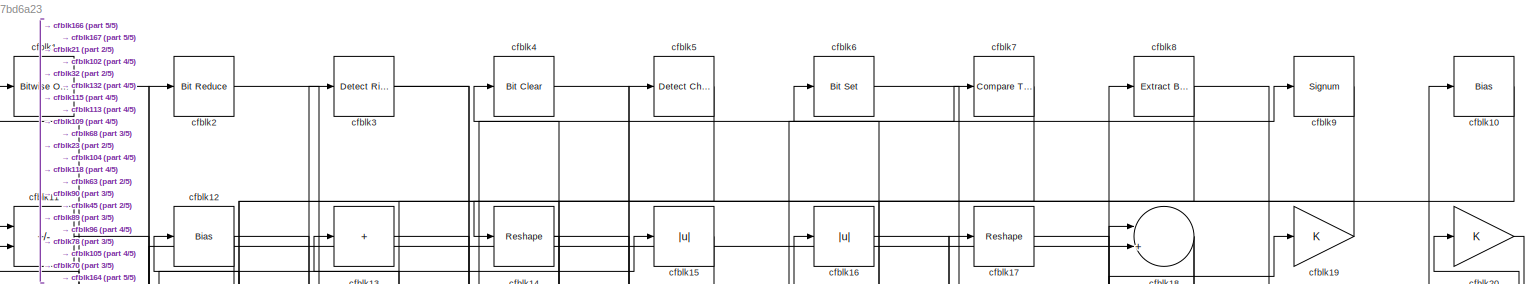
[diagram: root canvas - part 1/5, full width, top band]
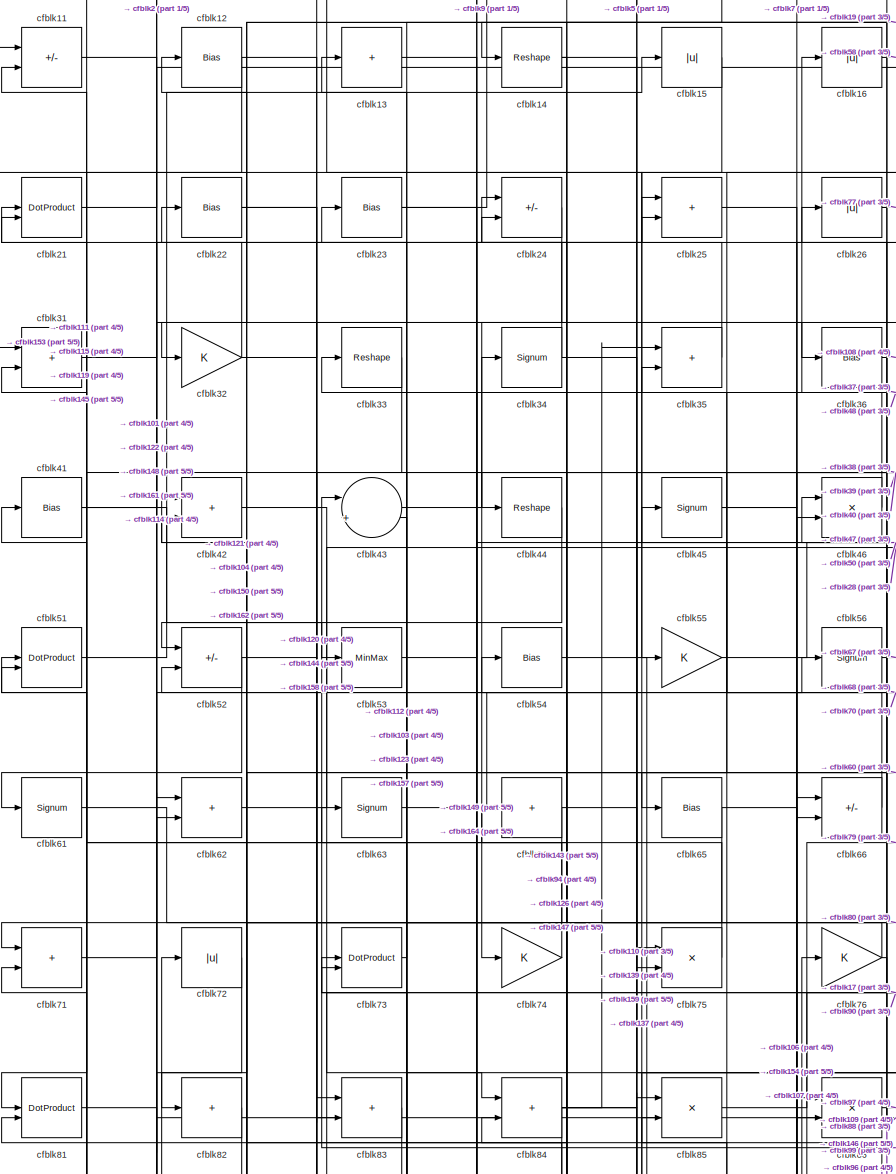
[diagram: root canvas - part 2/5, top left region]
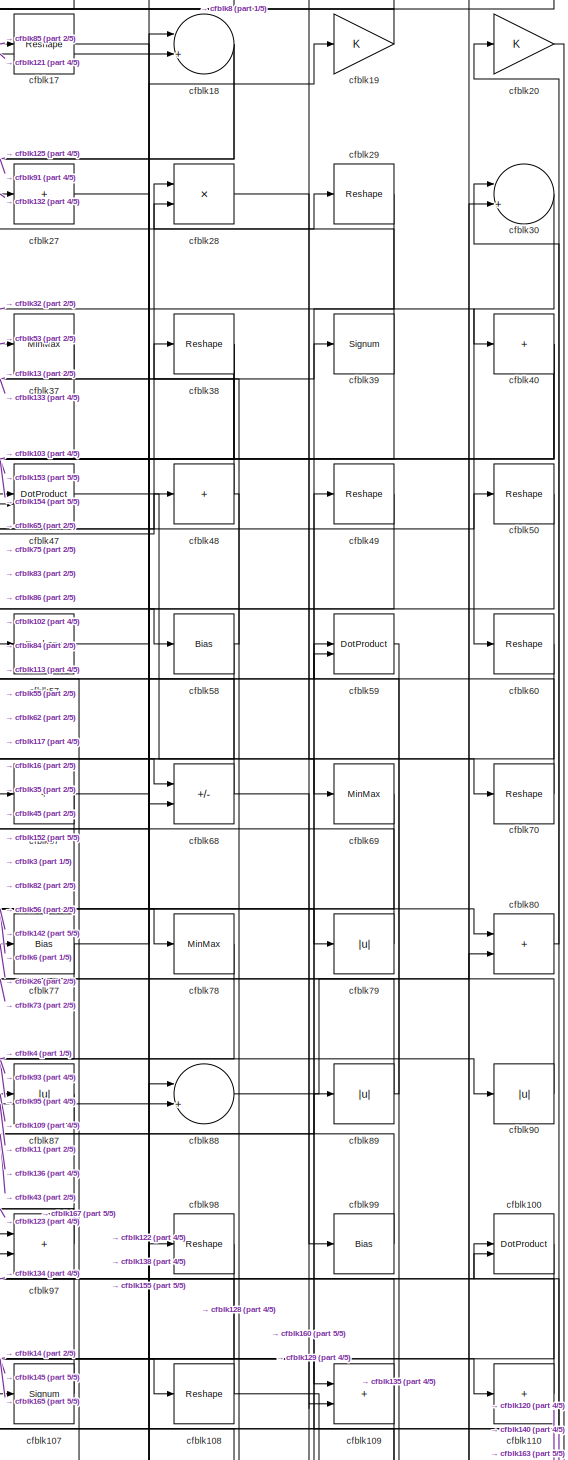
[diagram: root canvas - part 3/5, middle right region]
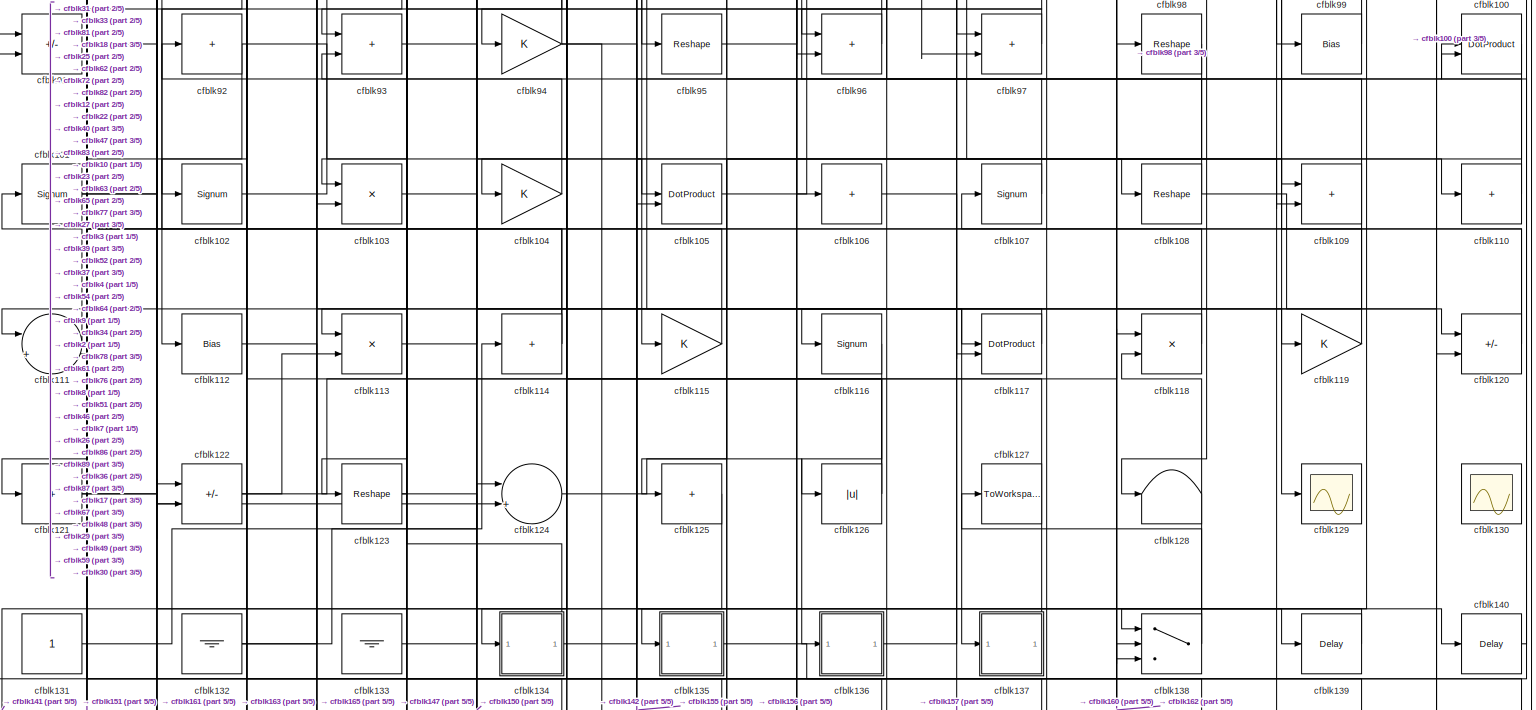
[diagram: root canvas - part 4/5, full width, bottom band]
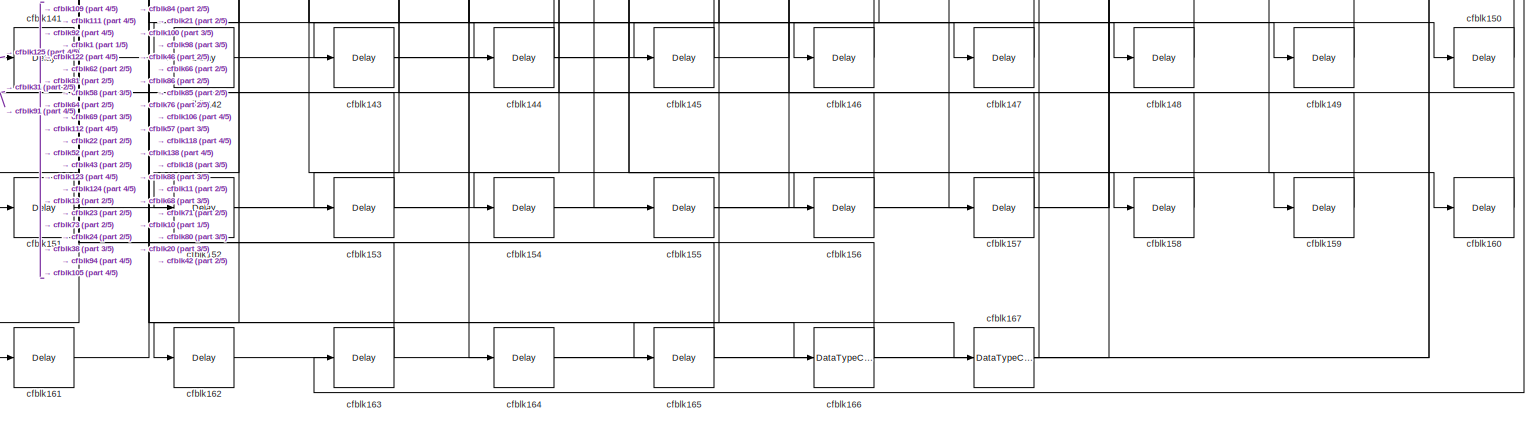
[diagram: root canvas - part 5/5, full width, bottom band]
MODEL slx_ee1817bd6a23
KIND model
CONFIG AbsTol = auto
CONFIG EnableMultiTasking = off
CONFIG FixedStep = auto
CONFIG MaxStep = auto
CONFIG MinStep = auto
CONFIG RelTol = 1e-3
CONFIG SampleTimeConstraint = Unconstrained
CONFIG SolverName = VariableStepAuto
CONFIG StartTime = 0.0
CONFIG StopTime = 10.0
BLOCK [Reference] cfblk1  REF=simulink/Logic and Bit
Operations/Bitwise
Operator
  LibrarySourceBlock = hdlsllib/Logic and Bit\nOperations/Bitwise\nOperator
  SourceBlock = simulink/Logic and Bit\nOperations/Bitwise\nOperator
  SourceType = Bitwise Operator
BLOCK [Bias] cfblk10
  Bias = 0.0
  SaturateOnIntegerOverflow = off
BLOCK [DotProduct] cfblk100
  OutDataTypeStr = Inherit: Inherit via internal rule
BLOCK [Signum] cfblk101
BLOCK [Signum] cfblk102
BLOCK [Product] cfblk103
  Inputs = */
  RndMeth = Zero
  SaturateOnIntegerOverflow = on
BLOCK [Gain] cfblk104
BLOCK [DotProduct] cfblk105
  OutDataTypeStr = Inherit: Inherit via internal rule
BLOCK [Sum] cfblk106
  IconShape = rectangular
  Inputs = +
BLOCK [Signum] cfblk107
BLOCK [Reshape] cfblk108
BLOCK [Sum] cfblk109
  IconShape = rectangular
BLOCK [Sum] cfblk11
  IconShape = rectangular
  Inputs = +-
BLOCK [Sum] cfblk110
  IconShape = rectangular
  Inputs = +
BLOCK [Sum] cfblk111
  Inputs = |++
BLOCK [Bias] cfblk112
  Bias = 0.0
  SaturateOnIntegerOverflow = off
BLOCK [Product] cfblk113
  Inputs = */
  RndMeth = Zero
  SaturateOnIntegerOverflow = on
BLOCK [Sum] cfblk114
  IconShape = rectangular
  Inputs = +
BLOCK [Gain] cfblk115
BLOCK [Signum] cfblk116
BLOCK [DotProduct] cfblk117
  OutDataTypeStr = Inherit: Inherit via internal rule
BLOCK [Product] cfblk118
  Inputs = */
  RndMeth = Zero
  SaturateOnIntegerOverflow = on
BLOCK [Gain] cfblk119
BLOCK [Bias] cfblk12
  Bias = 0.0
  SaturateOnIntegerOverflow = off
BLOCK [Sum] cfblk120
  IconShape = rectangular
  Inputs = +-
BLOCK [Sum] cfblk121
  IconShape = rectangular
  Inputs = +
BLOCK [Sum] cfblk122
  IconShape = rectangular
  Inputs = +-
BLOCK [Reshape] cfblk123
BLOCK [Sum] cfblk124
  Inputs = |++
BLOCK [Sum] cfblk125
  IconShape = rectangular
  Inputs = +
BLOCK [Abs] cfblk126
  SaturateOnIntegerOverflow = off
BLOCK [ToWorkspace] cfblk127
  MaxDataPoints = inf
  SampleTime = -1
  SaveFormat = Timeseries
  VariableName = simout
BLOCK [Terminator] cfblk128
BLOCK [Scope] cfblk129
  Floating = off
  NumInputPorts = 1
  ScopeSpecificationString = Simulink.scopes.TimeScopeBlockCfg('CurrentConfiguration', extmgr.ConfigurationSet(extmgr.Configuration('Core','General UI',true),extmgr.Configuration('Core','Source UI',true),extmgr.Configuration('Sources','WiredSimulink',true,'DataLoggingVariableName','ScopeData2','DataLoggingSaveFormat','Array','DataLoggingLimitDataPoints',true,'DataLoggingDecimation','1'),extmgr.Configuration('Visuals','Time Do...<+868ch>
BLOCK [Sum] cfblk13
  IconShape = rectangular
  Inputs = +
BLOCK [Scope] cfblk130
  Floating = on
  NumInputPorts = 1
  ScopeSpecificationString = Simulink.scopes.TimeScopeBlockCfg('CurrentConfiguration', extmgr.ConfigurationSet(extmgr.Configuration('Core','General UI',true,'FigureColor',[0.156862745098039 0.156862745098039 0.156862745098039]),extmgr.Configuration('Core','Source UI',true),extmgr.Configuration('Sources','WiredSimulink',true,'DataLoggingVariableName','ScopeData1','DataLoggingSaveFormat','StructureWithTime','DataLoggingLimitDat...<+2713ch>
BLOCK [Constant] cfblk131
  SampleTime = -1
BLOCK [Ground] cfblk132
BLOCK [Ground] cfblk133
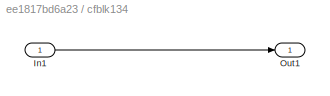
BLOCK [SubSystem] cfblk134
  LibrarySourceBlock = hdlsllib/Ports &\nSubsystems/Subsystem
BLOCK [Inport] cfblk134/In1
BLOCK [Outport] cfblk134/Out1
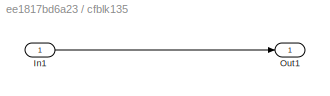
BLOCK [SubSystem] cfblk135
  LibrarySourceBlock = hdlsllib/Ports &\nSubsystems/Subsystem
BLOCK [Inport] cfblk135/In1
BLOCK [Outport] cfblk135/Out1
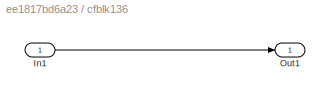
BLOCK [SubSystem] cfblk136
  LibrarySourceBlock = hdlsllib/Ports &\nSubsystems/Subsystem
BLOCK [Inport] cfblk136/In1
BLOCK [Outport] cfblk136/Out1
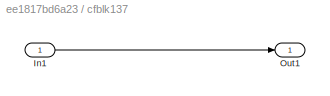
BLOCK [SubSystem] cfblk137
  LibrarySourceBlock = hdlsllib/Ports &\nSubsystems/Subsystem
BLOCK [Inport] cfblk137/In1
BLOCK [Outport] cfblk137/Out1
BLOCK [Switch] cfblk138
  InputSameDT = off
  SaturateOnIntegerOverflow = off
BLOCK [Delay] cfblk139
  InputPortMap = u0
  SampleTime = 1
BLOCK [Reshape] cfblk14
BLOCK [Delay] cfblk140
  InputPortMap = u0
  SampleTime = 1
BLOCK [Delay] cfblk141
  InputPortMap = u0
  SampleTime = 1
BLOCK [Delay] cfblk142
  InputPortMap = u0
  SampleTime = 1
BLOCK [Delay] cfblk143
  InputPortMap = u0
  SampleTime = 1
BLOCK [Delay] cfblk144
  InputPortMap = u0
  SampleTime = 1
BLOCK [Delay] cfblk145
  InputPortMap = u0
  SampleTime = 1
BLOCK [Delay] cfblk146
  InputPortMap = u0
  SampleTime = 1
BLOCK [Delay] cfblk147
  InputPortMap = u0
  SampleTime = 1
BLOCK [Delay] cfblk148
  InputPortMap = u0
  SampleTime = 1
BLOCK [Delay] cfblk149
  InputPortMap = u0
  SampleTime = 1
BLOCK [Abs] cfblk15
  SaturateOnIntegerOverflow = off
BLOCK [Delay] cfblk150
  InputPortMap = u0
  SampleTime = 1
BLOCK [Delay] cfblk151
  InputPortMap = u0
  SampleTime = 1
BLOCK [Delay] cfblk152
  InputPortMap = u0
  SampleTime = 1
BLOCK [Delay] cfblk153
  InputPortMap = u0
  SampleTime = 1
BLOCK [Delay] cfblk154
  InputPortMap = u0
  SampleTime = 1
BLOCK [Delay] cfblk155
  InputPortMap = u0
  SampleTime = 1
BLOCK [Delay] cfblk156
  InputPortMap = u0
  SampleTime = 1
BLOCK [Delay] cfblk157
  InputPortMap = u0
  SampleTime = 1
BLOCK [Delay] cfblk158
  InputPortMap = u0
  SampleTime = 1
BLOCK [Delay] cfblk159
  InputPortMap = u0
  SampleTime = 1
BLOCK [Abs] cfblk16
  SaturateOnIntegerOverflow = off
BLOCK [Delay] cfblk160
  InputPortMap = u0
  SampleTime = 1
BLOCK [Delay] cfblk161
  InputPortMap = u0
  SampleTime = 1
BLOCK [Delay] cfblk162
  InputPortMap = u0
  SampleTime = 1
BLOCK [Delay] cfblk163
  InputPortMap = u0
  SampleTime = 1
BLOCK [Delay] cfblk164
  InputPortMap = u0
  SampleTime = 1
BLOCK [Delay] cfblk165
  InputPortMap = u0
  SampleTime = 1
BLOCK [DataTypeConversion] cfblk166
  OutDataTypeStr = boolean
  RndMeth = Floor
  SaturateOnIntegerOverflow = off
BLOCK [DataTypeConversion] cfblk167
  RndMeth = Floor
  SaturateOnIntegerOverflow = off
BLOCK [Reshape] cfblk17
BLOCK [Sum] cfblk18
  Inputs = |++
BLOCK [Gain] cfblk19
BLOCK [Reference] cfblk2  REF=hdlsllib/Logic and Bit
Operations/Bit Reduce
  SourceBlock = hdlsllib/Logic and Bit\nOperations/Bit Reduce
  SourceType = Bit Reduce
BLOCK [Gain] cfblk20
BLOCK [DotProduct] cfblk21
  OutDataTypeStr = Inherit: Inherit via internal rule
BLOCK [Bias] cfblk22
  Bias = 0.0
  SaturateOnIntegerOverflow = off
BLOCK [Bias] cfblk23
  Bias = 0.0
  SaturateOnIntegerOverflow = off
BLOCK [Sum] cfblk24
  IconShape = rectangular
  Inputs = +-
BLOCK [Sum] cfblk25
  IconShape = rectangular
BLOCK [Abs] cfblk26
  SaturateOnIntegerOverflow = off
BLOCK [Sum] cfblk27
  IconShape = rectangular
  Inputs = +
BLOCK [Product] cfblk28
  Inputs = */
  RndMeth = Zero
  SaturateOnIntegerOverflow = on
BLOCK [Reshape] cfblk29
BLOCK [Reference] cfblk3  REF=hdlsllib/Logic and Bit
Operations/Detect Rise
Positive
  SourceBlock = hdlsllib/Logic and Bit\nOperations/Detect Rise\nPositive
  SourceType = Detect Rise Positive
BLOCK [Sum] cfblk30
  Inputs = |++
BLOCK [Sum] cfblk31
  IconShape = rectangular
BLOCK [Gain] cfblk32
BLOCK [Reshape] cfblk33
BLOCK [Signum] cfblk34
BLOCK [Sum] cfblk35
  IconShape = rectangular
BLOCK [Bias] cfblk36
  Bias = 0.0
  SaturateOnIntegerOverflow = off
BLOCK [MinMax] cfblk37
BLOCK [Reshape] cfblk38
BLOCK [Signum] cfblk39
BLOCK [Reference] cfblk4  REF=simulink/Logic and Bit
Operations/Bit Clear
  LibrarySourceBlock = hdlsllib/Logic and Bit\nOperations/Bit Clear
  SourceBlock = simulink/Logic and Bit\nOperations/Bit Clear
  SourceType = Bit Clear
BLOCK [Sum] cfblk40
  IconShape = rectangular
  Inputs = +
BLOCK [Bias] cfblk41
  Bias = 0.0
  SaturateOnIntegerOverflow = off
BLOCK [Sum] cfblk42
  IconShape = rectangular
BLOCK [Sum] cfblk43
  Inputs = |++
BLOCK [Reshape] cfblk44
BLOCK [Signum] cfblk45
BLOCK [Product] cfblk46
  Inputs = */
  RndMeth = Zero
  SaturateOnIntegerOverflow = on
BLOCK [DotProduct] cfblk47
  OutDataTypeStr = Inherit: Inherit via internal rule
BLOCK [Sum] cfblk48
  IconShape = rectangular
  Inputs = +
BLOCK [Reshape] cfblk49
BLOCK [Reference] cfblk5  REF=simulink/Logic and Bit
Operations/Detect
Change
  LibrarySourceBlock = hdlsllib/Logic and Bit\nOperations/Detect\nChange
  SourceBlock = simulink/Logic and Bit\nOperations/Detect\nChange
  SourceType = Detect Change
BLOCK [Reshape] cfblk50
BLOCK [DotProduct] cfblk51
  OutDataTypeStr = Inherit: Inherit via internal rule
BLOCK [Sum] cfblk52
  IconShape = rectangular
  Inputs = +-
BLOCK [MinMax] cfblk53
BLOCK [Bias] cfblk54
  Bias = 0.0
  SaturateOnIntegerOverflow = off
BLOCK [Gain] cfblk55
BLOCK [Signum] cfblk56
BLOCK [Reshape] cfblk57
BLOCK [Bias] cfblk58
  Bias = 0.0
  SaturateOnIntegerOverflow = off
BLOCK [DotProduct] cfblk59
  OutDataTypeStr = Inherit: Inherit via internal rule
BLOCK [Reference] cfblk6  REF=simulink/Logic and Bit
Operations/Bit Set
  LibrarySourceBlock = hdlsllib/Logic and Bit\nOperations/Bit Set
  SourceBlock = simulink/Logic and Bit\nOperations/Bit Set
  SourceType = Bit Set
BLOCK [Reshape] cfblk60
BLOCK [Signum] cfblk61
BLOCK [Sum] cfblk62
  IconShape = rectangular
BLOCK [Signum] cfblk63
BLOCK [Sum] cfblk64
  IconShape = rectangular
  Inputs = +
BLOCK [Bias] cfblk65
  Bias = 0.0
  SaturateOnIntegerOverflow = off
BLOCK [Sum] cfblk66
  IconShape = rectangular
  Inputs = +-
BLOCK [Sum] cfblk67
  IconShape = rectangular
  Inputs = +
BLOCK [Sum] cfblk68
  IconShape = rectangular
  Inputs = +-
BLOCK [MinMax] cfblk69
BLOCK [Reference] cfblk7  REF=hdlsllib/Logic and Bit
Operations/Compare
To Constant
  SourceBlock = hdlsllib/Logic and Bit\nOperations/Compare\nTo Constant
  SourceType = Compare To Constant
BLOCK [Reshape] cfblk70
BLOCK [Sum] cfblk71
  IconShape = rectangular
BLOCK [Abs] cfblk72
  SaturateOnIntegerOverflow = off
BLOCK [DotProduct] cfblk73
  OutDataTypeStr = Inherit: Inherit via internal rule
BLOCK [Gain] cfblk74
BLOCK [Product] cfblk75
  Inputs = */
  RndMeth = Zero
  SaturateOnIntegerOverflow = on
BLOCK [Gain] cfblk76
BLOCK [Bias] cfblk77
  Bias = 0.0
  SaturateOnIntegerOverflow = off
BLOCK [MinMax] cfblk78
BLOCK [Abs] cfblk79
  SaturateOnIntegerOverflow = off
BLOCK [Reference] cfblk8  REF=simulink/Logic and Bit
Operations/Extract Bits
  LibrarySourceBlock = hdlsllib/Logic and Bit\nOperations/Extract Bits
  SourceBlock = simulink/Logic and Bit\nOperations/Extract Bits
  SourceType = Extract Bits
BLOCK [Sum] cfblk80
  IconShape = rectangular
BLOCK [DotProduct] cfblk81
  OutDataTypeStr = Inherit: Inherit via internal rule
BLOCK [Sum] cfblk82
  IconShape = rectangular
  Inputs = +
BLOCK [Sum] cfblk83
  IconShape = rectangular
BLOCK [Sum] cfblk84
  IconShape = rectangular
BLOCK [Product] cfblk85
  Inputs = */
  RndMeth = Zero
  SaturateOnIntegerOverflow = on
BLOCK [Product] cfblk86
  Inputs = */
  RndMeth = Zero
  SaturateOnIntegerOverflow = on
BLOCK [Abs] cfblk87
  SaturateOnIntegerOverflow = off
BLOCK [Sum] cfblk88
  Inputs = |++
BLOCK [Abs] cfblk89
  SaturateOnIntegerOverflow = off
BLOCK [Signum] cfblk9
BLOCK [Abs] cfblk90
  SaturateOnIntegerOverflow = off
BLOCK [Sum] cfblk91
  IconShape = rectangular
  Inputs = +-
BLOCK [Sum] cfblk92
  IconShape = rectangular
  Inputs = +
BLOCK [Sum] cfblk93
  IconShape = rectangular
BLOCK [Gain] cfblk94
BLOCK [Reshape] cfblk95
BLOCK [Sum] cfblk96
  IconShape = rectangular
BLOCK [Sum] cfblk97
  IconShape = rectangular
BLOCK [Reshape] cfblk98
BLOCK [Bias] cfblk99
  Bias = 0.0
  SaturateOnIntegerOverflow = off
LINE cfblk100:1 -> cfblk145:1
NET cfblk101:1 -> cfblk25:2, cfblk62:1
LINE cfblk102:1 -> cfblk47:1
LINE cfblk103:1 -> cfblk117:1
LINE cfblk104:1 -> cfblk12:1
LINE cfblk105:1 -> cfblk8:1
LINE cfblk106:1 -> cfblk157:1
LINE cfblk107:1 -> cfblk76:1
NET cfblk108:1 -> cfblk120:1, cfblk63:1
NET cfblk109:1 -> cfblk151:1, cfblk46:1
LINE cfblk10:1 -> cfblk113:1
LINE cfblk110:1 -> cfblk85:2
LINE cfblk111:1 -> cfblk101:1
LINE cfblk112:1 -> cfblk147:1
LINE cfblk113:1 -> cfblk48:1
NET cfblk114:1 -> cfblk72:1, cfblk81:2
LINE cfblk115:1 -> cfblk31:2
LINE cfblk116:1 -> cfblk136:1
LINE cfblk117:1 -> cfblk116:1
LINE cfblk118:1 -> cfblk4:1
LINE cfblk119:1 -> cfblk51:2
LINE cfblk11:1 -> cfblk88:2
NET cfblk120:1 -> cfblk107:1, cfblk49:1
NET cfblk121:1 -> cfblk140:1, cfblk18:2
NET cfblk122:1 -> cfblk113:2, cfblk98:1
NET cfblk123:1 -> cfblk150:1, cfblk23:1
LINE cfblk124:1 -> cfblk126:1
LINE cfblk125:1 -> cfblk141:1
NET cfblk126:1 -> cfblk54:1, cfblk64:1
NET cfblk12:1 -> cfblk81:1, cfblk83:1
LINE cfblk131:1 -> cfblk114:1
NET cfblk132:1 -> cfblk27:1, cfblk3:1
LINE cfblk133:1 -> cfblk39:1
LINE cfblk134/In1:1 -> cfblk134/Out1:1
NET cfblk134:1 -> cfblk100:2, cfblk93:2
LINE cfblk135/In1:1 -> cfblk135/Out1:1
LINE cfblk135:1 -> cfblk100:1
LINE cfblk136/In1:1 -> cfblk136/Out1:1
LINE cfblk136:1 -> cfblk89:1
LINE cfblk137/In1:1 -> cfblk137/Out1:1
LINE cfblk137:1 -> cfblk92:1
NET cfblk138:1 -> cfblk118:2, cfblk127:1
LINE cfblk139:1 -> cfblk138:1
LINE cfblk13:1 -> cfblk164:1
LINE cfblk140:1 -> cfblk30:1
LINE cfblk141:1 -> cfblk166:1
LINE cfblk142:1 -> cfblk105:2
LINE cfblk143:1 -> cfblk66:1
LINE cfblk144:1 -> cfblk73:2
LINE cfblk145:1 -> cfblk21:2
LINE cfblk146:1 -> cfblk85:1
LINE cfblk147:1 -> cfblk84:2
LINE cfblk148:1 -> cfblk11:1
LINE cfblk149:1 -> cfblk71:2
NET cfblk14:1 -> cfblk110:1, cfblk44:1
LINE cfblk150:1 -> cfblk42:2
LINE cfblk151:1 -> cfblk124:1
LINE cfblk152:1 -> cfblk88:1
LINE cfblk153:1 -> cfblk31:1
LINE cfblk154:1 -> cfblk46:2
LINE cfblk155:1 -> cfblk18:1
LINE cfblk156:1 -> cfblk91:1
LINE cfblk157:1 -> cfblk43:2
LINE cfblk158:1 -> cfblk86:1
LINE cfblk159:1 -> cfblk24:2
LINE cfblk15:1 -> cfblk55:1
LINE cfblk160:1 -> cfblk138:2
LINE cfblk161:1 -> cfblk62:2
LINE cfblk162:1 -> cfblk118:1
LINE cfblk163:1 -> cfblk111:2
LINE cfblk164:1 -> cfblk10:1
LINE cfblk165:1 -> cfblk122:1
LINE cfblk166:1 -> cfblk1:1
NET cfblk167:1 -> cfblk57:1, cfblk80:2
LINE cfblk16:1 -> cfblk58:1
LINE cfblk17:1 -> cfblk138:3
NET cfblk18:1 -> cfblk125:1, cfblk91:2
LINE cfblk19:1 -> cfblk14:1
LINE cfblk1:1 -> cfblk167:1
LINE cfblk20:1 -> cfblk163:1
LINE cfblk21:1 -> cfblk2:1
NET cfblk22:1 -> cfblk120:2, cfblk144:1
NET cfblk23:1 -> cfblk149:1, cfblk9:1
LINE cfblk24:1 -> cfblk74:1
LINE cfblk25:1 -> cfblk96:2
NET cfblk26:1 -> cfblk77:1, cfblk97:2
LINE cfblk27:1 -> cfblk79:1
LINE cfblk28:1 -> cfblk99:1
LINE cfblk29:1 -> cfblk129:1
LINE cfblk2:1 -> cfblk115:1
LINE cfblk30:1 -> cfblk60:1
LINE cfblk31:1 -> cfblk36:1
NET cfblk32:1 -> cfblk11:2, cfblk40:1
LINE cfblk33:1 -> cfblk111:1
NET cfblk34:1 -> cfblk139:1, cfblk24:1
LINE cfblk35:1 -> cfblk22:1
LINE cfblk36:1 -> cfblk108:1
LINE cfblk37:1 -> cfblk134:1
NET cfblk38:1 -> cfblk153:1, cfblk154:1, cfblk86:2
NET cfblk39:1 -> cfblk28:2, cfblk83:2
NET cfblk3:1 -> cfblk109:1, cfblk68:1
NET cfblk40:1 -> cfblk103:2, cfblk65:1, cfblk75:2
NET cfblk41:1 -> cfblk25:1, cfblk53:1
LINE cfblk42:1 -> cfblk84:1
LINE cfblk43:1 -> cfblk34:1
LINE cfblk44:1 -> cfblk52:1
NET cfblk45:1 -> cfblk66:2, cfblk7:1
LINE cfblk46:1 -> cfblk16:1
LINE cfblk47:1 -> cfblk69:1
NET cfblk48:1 -> cfblk128:1, cfblk13:1
LINE cfblk49:1 -> cfblk117:2
LINE cfblk4:1 -> cfblk90:1
LINE cfblk50:1 -> cfblk68:2
LINE cfblk51:1 -> cfblk15:1
NET cfblk52:1 -> cfblk158:1, cfblk61:1
LINE cfblk53:1 -> cfblk37:1
LINE cfblk54:1 -> cfblk137:1
LINE cfblk55:1 -> cfblk50:1
LINE cfblk56:1 -> cfblk67:1
LINE cfblk57:1 -> cfblk19:1
NET cfblk58:1 -> cfblk152:1, cfblk38:1
LINE cfblk59:1 -> cfblk135:1
LINE cfblk5:1 -> cfblk32:1
LINE cfblk60:1 -> cfblk82:1
LINE cfblk61:1 -> cfblk106:1
LINE cfblk62:1 -> cfblk28:1
LINE cfblk63:1 -> cfblk5:1
NET cfblk64:1 -> cfblk162:1, cfblk75:1
NET cfblk65:1 -> cfblk103:1, cfblk80:1
LINE cfblk66:1 -> cfblk42:1
NET cfblk67:1 -> cfblk109:2, cfblk87:1
NET cfblk68:1 -> cfblk160:1, cfblk35:2
LINE cfblk69:1 -> cfblk142:1
LINE cfblk6:1 -> cfblk78:1
LINE cfblk70:1 -> cfblk45:1
LINE cfblk71:1 -> cfblk56:1
LINE cfblk72:1 -> cfblk122:2
LINE cfblk73:1 -> cfblk33:1
LINE cfblk74:1 -> cfblk21:1
LINE cfblk75:1 -> cfblk41:1
NET cfblk76:1 -> cfblk146:1, cfblk71:1
NET cfblk77:1 -> cfblk59:1, cfblk93:1
LINE cfblk78:1 -> cfblk95:1
LINE cfblk79:1 -> cfblk26:1
LINE cfblk7:1 -> cfblk96:1
LINE cfblk80:1 -> cfblk20:1
LINE cfblk81:1 -> cfblk148:1
LINE cfblk82:1 -> cfblk121:1
LINE cfblk83:1 -> cfblk112:1
NET cfblk84:1 -> cfblk143:1, cfblk159:1, cfblk35:1, cfblk47:2
LINE cfblk85:1 -> cfblk17:1
LINE cfblk86:1 -> cfblk97:1
LINE cfblk87:1 -> cfblk123:1
LINE cfblk88:1 -> cfblk30:2
NET cfblk89:1 -> cfblk59:2, cfblk6:1
NET cfblk8:1 -> cfblk102:1, cfblk70:1
LINE cfblk90:1 -> cfblk73:1
LINE cfblk91:1 -> cfblk124:2
NET cfblk92:1 -> cfblk105:1, cfblk161:1
LINE cfblk93:1 -> cfblk119:1
NET cfblk94:1 -> cfblk155:1, cfblk156:1, cfblk52:2
LINE cfblk95:1 -> cfblk29:1
LINE cfblk96:1 -> cfblk51:1
LINE cfblk97:1 -> cfblk94:1
LINE cfblk98:1 -> cfblk165:1
LINE cfblk99:1 -> cfblk43:1
LINE cfblk9:1 -> cfblk104:1
note: NET lines group one-source signal fan-out (src -> all destinations, sorted); 1:1 wires keep LINE
